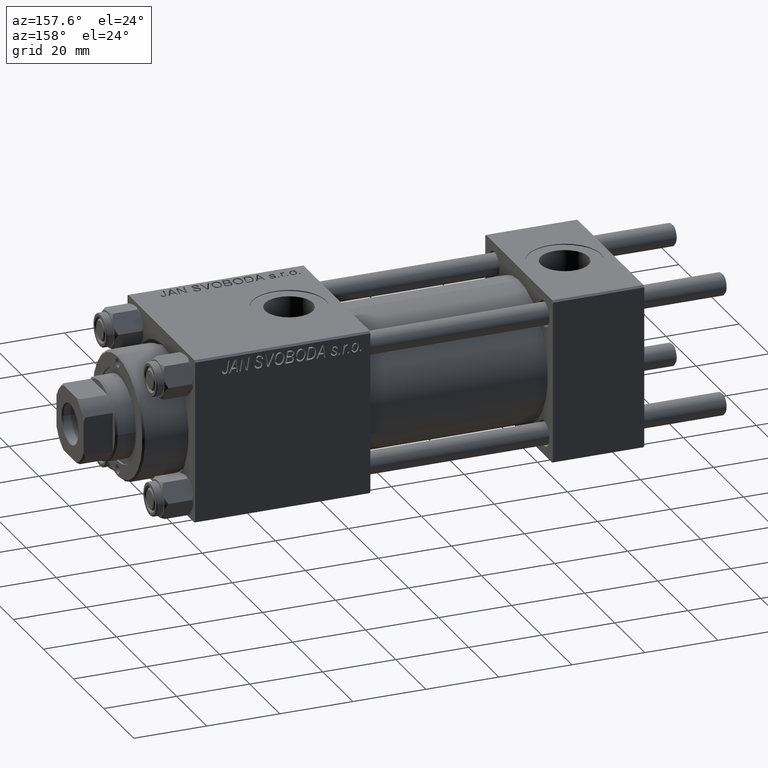
[diagram: clean part render]
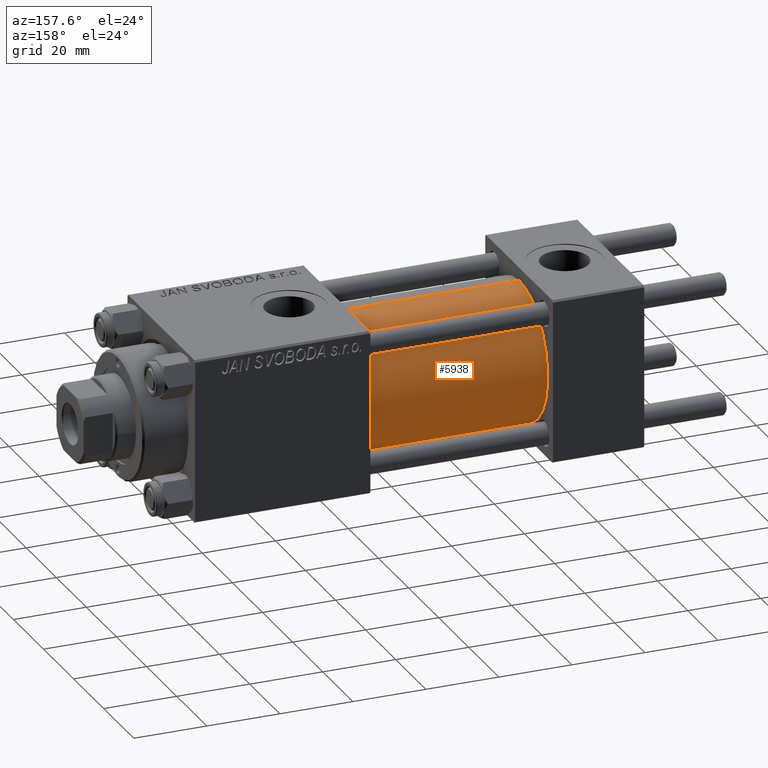
[diagram: same view with one face highlighted and labeled with its STEP entity id]
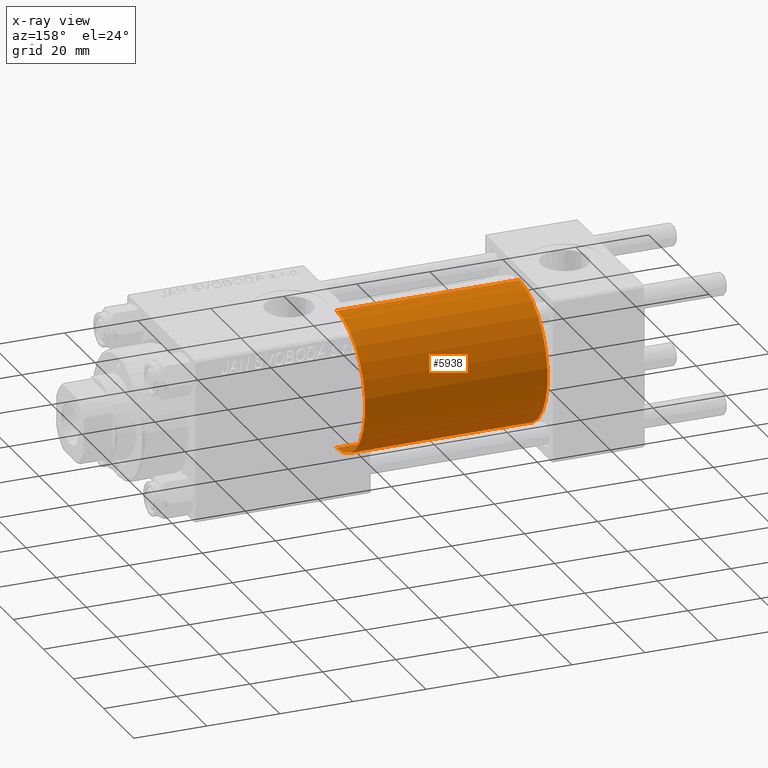
[diagram: x-ray of the same camera — body ghosted, the highlighted face saturated]
A machine part, auxiliary view. The second image highlights one B-rep face of the part: STEP entity #5938.
The next image is the same camera in x-ray: the body ghosted, the highlighted face saturated — about 0% of this face is hidden behind the body in this view.
In plain terms, the highlighted cylindrical surface (partial cylindrical patch) has radius 19 mm, axis along (-1, -0, -0).
Its self-contained STEP definition (entity closure, byte-faithful):
#1605 = CARTESIAN_POINT ( 'NONE',  ( 75.00000000000001421, 2.326828918379970970E-15, -19.00000000000000000 ) ) ;
#1750 = LINE ( 'NONE', #25714, #41077 ) ;
#2520 = CIRCLE ( 'NONE', #45358, 19.00000000000000000 ) ;
#5938 = ADVANCED_FACE ( 'NONE', ( #21522 ), #9432, .T. ) ;
#7569 = CARTESIAN_POINT ( 'NONE',  ( 25.00000000000000000, 2.326828918379970970E-15, -19.00000000000000000 ) ) ;
#8493 = VERTEX_POINT ( 'NONE', #28726 ) ;
#9432 = CYLINDRICAL_SURFACE ( 'NONE', #29780, 19.00000000000000000 ) ;
#9433 = DIRECTION ( 'NONE',  ( 0.000000000000000000, 0.000000000000000000, -1.000000000000000000 ) ) ;
#9900 = CARTESIAN_POINT ( 'NONE',  ( 75.00000000000001421, 0.000000000000000000, 19.00000000000000000 ) ) ;
#10787 = ORIENTED_EDGE ( 'NONE', *, *, #51447, .F. ) ;
#11007 = VECTOR ( 'NONE', #14218, 1000.000000000000000 ) ;
#12302 = VERTEX_POINT ( 'NONE', #7569 ) ;
#14218 = DIRECTION ( 'NONE',  ( -1.000000000000000000, -0.000000000000000000, -0.000000000000000000 ) ) ;
#18038 = ORIENTED_EDGE ( 'NONE', *, *, #23523, .T. ) ;
#21522 = FACE_OUTER_BOUND ( 'NONE', #24895, .T. ) ;
#21698 = EDGE_CURVE ( 'NONE', #8493, #48078, #2520, .T. ) ;
#23523 = EDGE_CURVE ( 'NONE', #8493, #12302, #37904, .T. ) ;
#24895 = EDGE_LOOP ( 'NONE', ( #33598, #18038, #49319, #10787 ) ) ;
#25484 = DIRECTION ( 'NONE',  ( 0.000000000000000000, 0.000000000000000000, 1.000000000000000000 ) ) ;
#25714 = CARTESIAN_POINT ( 'NONE',  ( 75.00000000000001421, 0.000000000000000000, 19.00000000000000000 ) ) ;
#28006 = DIRECTION ( 'NONE',  ( 1.000000000000000000, -0.000000000000000000, 0.000000000000000000 ) ) ;
#28726 = CARTESIAN_POINT ( 'NONE',  ( 75.00000000000001421, 2.326828918379970970E-15, -19.00000000000000000 ) ) ;
#29780 = AXIS2_PLACEMENT_3D ( 'NONE', #48621, #40985, #25484 ) ;
#33110 = CARTESIAN_POINT ( 'NONE',  ( 75.00000000000001421, 0.000000000000000000, 0.000000000000000000 ) ) ;
#33598 = ORIENTED_EDGE ( 'NONE', *, *, #21698, .F. ) ;
#34513 = VERTEX_POINT ( 'NONE', #35647 ) ;
#35647 = CARTESIAN_POINT ( 'NONE',  ( 25.00000000000000000, 0.000000000000000000, 19.00000000000000000 ) ) ;
#37904 = LINE ( 'NONE', #1605, #11007 ) ;
#37908 = EDGE_CURVE ( 'NONE', #12302, #34513, #47490, .T. ) ;
#40985 = DIRECTION ( 'NONE',  ( -1.000000000000000000, -0.000000000000000000, -0.000000000000000000 ) ) ;
#41077 = VECTOR ( 'NONE', #45162, 1000.000000000000000 ) ;
#42998 = CARTESIAN_POINT ( 'NONE',  ( 25.00000000000000000, 0.000000000000000000, 0.000000000000000000 ) ) ;
#45162 = DIRECTION ( 'NONE',  ( -1.000000000000000000, -0.000000000000000000, -0.000000000000000000 ) ) ;
#45358 = AXIS2_PLACEMENT_3D ( 'NONE', #33110, #45451, #9433 ) ;
#45451 = DIRECTION ( 'NONE',  ( 1.000000000000000000, 0.000000000000000000, 0.000000000000000000 ) ) ;
#47475 = DIRECTION ( 'NONE',  ( 0.000000000000000000, 0.000000000000000000, 1.000000000000000000 ) ) ;
#47490 = CIRCLE ( 'NONE', #49148, 19.00000000000000000 ) ;
#48078 = VERTEX_POINT ( 'NONE', #9900 ) ;
#48621 = CARTESIAN_POINT ( 'NONE',  ( 75.00000000000001421, 0.000000000000000000, 0.000000000000000000 ) ) ;
#49148 = AXIS2_PLACEMENT_3D ( 'NONE', #42998, #28006, #47475 ) ;
#49319 = ORIENTED_EDGE ( 'NONE', *, *, #37908, .T. ) ;
#51447 = EDGE_CURVE ( 'NONE', #48078, #34513, #1750, .T. ) ;